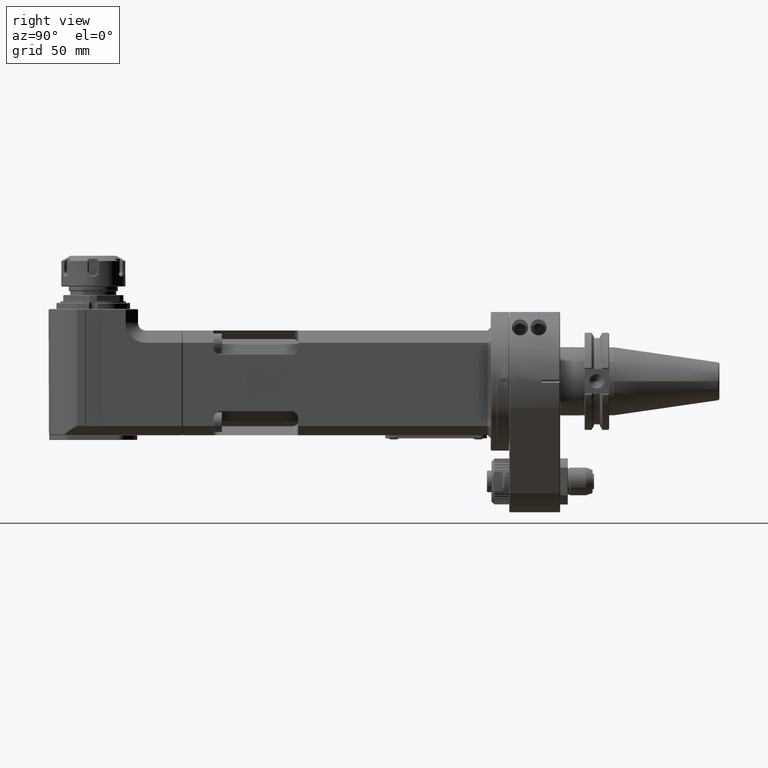
[diagram: clean part render]
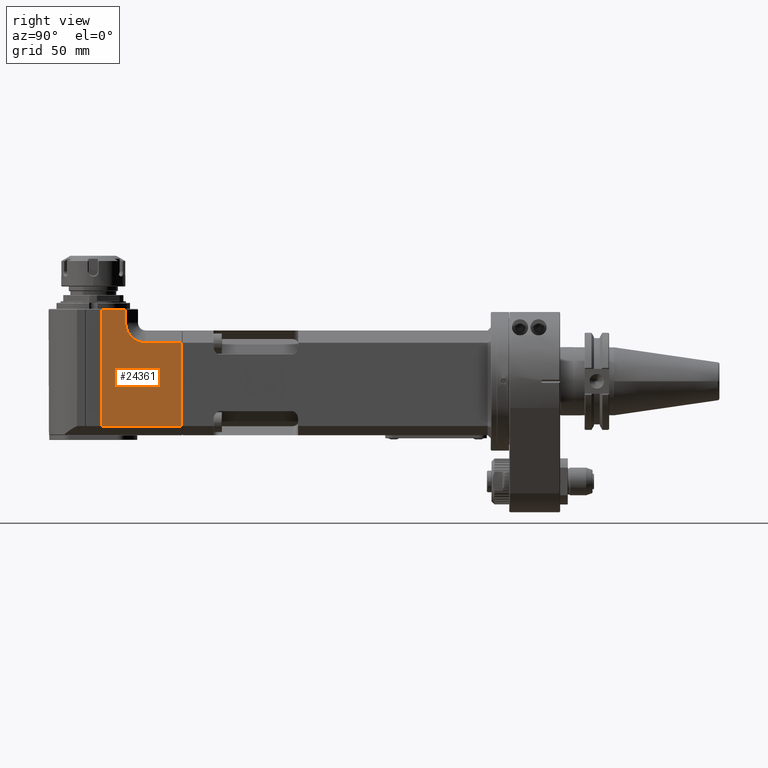
[diagram: same view with one face highlighted and labeled with its STEP entity id]
A machine part, right view. The second image highlights one B-rep face of the part: STEP entity #24361.
In plain terms, the highlighted planar face has unit normal (1, 0, -0).
Its self-contained STEP definition (entity closure, byte-faithful):
#486=PLANE('',#26031);
#2070=FACE_OUTER_BOUND('',#3572,.T.);
#3572=EDGE_LOOP('',(#17227,#17228,#17229,#17230,#17231,#17232,#17233));
#5361=CIRCLE('',#26032,13.);
#6513=LINE('',#36590,#8546);
#6530=LINE('',#36623,#8563);
#6531=LINE('',#36628,#8564);
#6532=LINE('',#36630,#8565);
#6533=LINE('',#36632,#8566);
#6534=LINE('',#36633,#8567);
#8546=VECTOR('',#28932,54.);
#8563=VECTOR('',#28965,23.5);
#8564=VECTOR('',#28970,8.5);
#8565=VECTOR('',#28971,15.8);
#8566=VECTOR('',#28972,75.5);
#8567=VECTOR('',#28973,52.3);
#10676=VERTEX_POINT('',#36587);
#10677=VERTEX_POINT('',#36589);
#10685=VERTEX_POINT('',#36621);
#10686=VERTEX_POINT('',#36625);
#10687=VERTEX_POINT('',#36627);
#10688=VERTEX_POINT('',#36629);
#10689=VERTEX_POINT('',#36631);
#13207=EDGE_CURVE('',#10676,#10677,#6513,.T.);
#13224=EDGE_CURVE('',#10676,#10685,#6530,.T.);
#13225=EDGE_CURVE('',#10686,#10685,#5361,.T.);
#13226=EDGE_CURVE('',#10687,#10686,#6531,.T.);
#13227=EDGE_CURVE('',#10687,#10688,#6532,.T.);
#13228=EDGE_CURVE('',#10688,#10689,#6533,.T.);
#13229=EDGE_CURVE('',#10677,#10689,#6534,.T.);
#17227=ORIENTED_EDGE('',*,*,#13207,.F.);
#17228=ORIENTED_EDGE('',*,*,#13224,.T.);
#17229=ORIENTED_EDGE('',*,*,#13225,.F.);
#17230=ORIENTED_EDGE('',*,*,#13226,.F.);
#17231=ORIENTED_EDGE('',*,*,#13227,.T.);
#17232=ORIENTED_EDGE('',*,*,#13228,.T.);
#17233=ORIENTED_EDGE('',*,*,#13229,.F.);
#24361=ADVANCED_FACE('',(#2070),#486,.T.);
#26031=AXIS2_PLACEMENT_3D('',#36624,#28966,#28967);
#26032=AXIS2_PLACEMENT_3D('',#36626,#28968,#28969);
#28932=DIRECTION('',(0.,0.,-1.));
#28965=DIRECTION('',(0.,-1.,0.));
#28966=DIRECTION('center_axis',(1.,0.,0.));
#28967=DIRECTION('ref_axis',(0.,0.,-1.));
#28968=DIRECTION('center_axis',(1.,0.,0.));
#28969=DIRECTION('ref_axis',(0.,-1.,0.));
#28970=DIRECTION('',(0.,0.,-1.));
#28971=DIRECTION('',(0.,-1.,0.));
#28972=DIRECTION('',(0.,0.,-1.));
#28973=DIRECTION('',(0.,-1.,0.));
#36587=CARTESIAN_POINT('',(29.,-212.5,25.));
#36589=CARTESIAN_POINT('',(29.,-212.5,-29.));
#36590=CARTESIAN_POINT('',(29.,-212.5,25.));
#36621=CARTESIAN_POINT('',(29.,-236.,25.));
#36623=CARTESIAN_POINT('',(29.,-212.5,25.));
#36624=CARTESIAN_POINT('Origin',(29.,-299.,47.));
#36625=CARTESIAN_POINT('',(29.,-249.,38.));
#36626=CARTESIAN_POINT('Origin',(29.,-236.,38.));
#36627=CARTESIAN_POINT('',(29.,-249.,46.5));
#36628=CARTESIAN_POINT('',(29.,-249.,46.5));
#36629=CARTESIAN_POINT('',(29.,-264.8,46.5));
#36630=CARTESIAN_POINT('',(29.,-249.,46.5));
#36631=CARTESIAN_POINT('',(29.,-264.8,-29.));
#36632=CARTESIAN_POINT('',(29.,-264.8,46.5));
#36633=CARTESIAN_POINT('',(29.,-212.5,-29.));